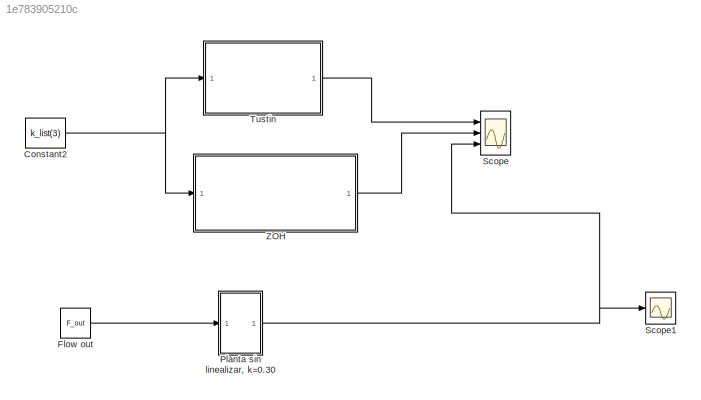
MODEL slx_1e783905210c
KIND model
CONFIG AbsTol = auto
CONFIG EnableMultiTasking = off
CONFIG FixedStep = auto
CONFIG MaxStep = auto
CONFIG MinStep = auto
CONFIG RelTol = 1e-3
CONFIG SampleTimeConstraint = Unconstrained
CONFIG SolverName = VariableStepAuto
CONFIG StartTime = 0.0
CONFIG StopTime = 60
BLOCK [Constant] Constant2
  Value = k_list(3)
BLOCK [Constant] Flow out
  Value = F_out
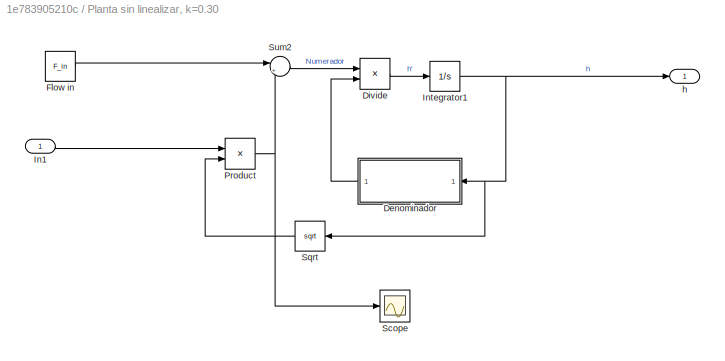
BLOCK [SubSystem] Planta sin linealizar, k=0.30
  Ports = [1, 1]
  RequestExecContextInheritance = off
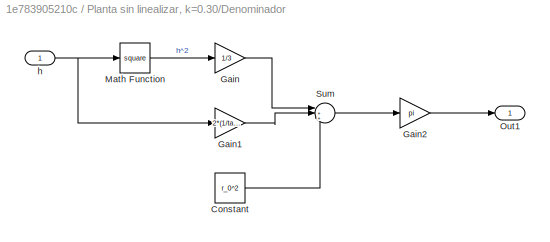
BLOCK [SubSystem] Planta sin linealizar, k=0.30/Denominador
  NameLocation = top
  Ports = [1, 1]
  RequestExecContextInheritance = off
BLOCK [Constant] Planta sin linealizar, k=0.30/Denominador/Constant
  Value = r_0^2
BLOCK [Gain] Planta sin linealizar, k=0.30/Denominador/Gain
  Gain = 1/3
BLOCK [Gain] Planta sin linealizar, k=0.30/Denominador/Gain1
  Gain = 2*(1/tand(theta))*r_0
BLOCK [Gain] Planta sin linealizar, k=0.30/Denominador/Gain2
  Gain = pi
BLOCK [Math] Planta sin linealizar, k=0.30/Denominador/Math Function
  Operator = square
  Ports = [1, 1]
BLOCK [Outport] Planta sin linealizar, k=0.30/Denominador/Out1
BLOCK [Sum] Planta sin linealizar, k=0.30/Denominador/Sum
  Inputs = |+++
  Ports = [3, 1]
BLOCK [Inport] Planta sin linealizar, k=0.30/Denominador/h
BLOCK [Product] Planta sin linealizar, k=0.30/Divide
  Inputs = */
  Ports = [2, 1]
BLOCK [Constant] Planta sin linealizar, k=0.30/Flow in
  Value = F_in
BLOCK [Inport] Planta sin linealizar, k=0.30/In1
BLOCK [Integrator] Planta sin linealizar, k=0.30/Integrator1
  InitialCondition = h_bar
  Ports = [1, 1]
BLOCK [Product] Planta sin linealizar, k=0.30/Product
  Ports = [2, 1]
BLOCK [Scope] Planta sin linealizar, k=0.30/Scope
  Floating = off
  NumInputPorts = 1
  Ports = [1]
  ScopeSpecificationString = Simulink.scopes.TimeScopeBlockCfg('CurrentConfiguration', extmgr.ConfigurationSet(extmgr.Configuration('Core','General UI',true),extmgr.Configuration('Core','Source UI',true),extmgr.Configuration('Sources','WiredSimulink',true,'DataLoggingVariableName','ScopeData2'),extmgr.Configuration('Visuals','Time Domain',true,'SerializedDisplays',{struct('MinYLimReal','-1.00000','MaxYLimReal','1.00000','YLab...<+1366ch>
BLOCK [Sqrt] Planta sin linealizar, k=0.30/Sqrt
  NameLocation = top
BLOCK [Sum] Planta sin linealizar, k=0.30/Sum2
  Inputs = |+-
  Ports = [2, 1]
BLOCK [Outport] Planta sin linealizar, k=0.30/h
BLOCK [Scope] Scope
  Floating = off
  NumInputPorts = 3
  Ports = [3]
  ScopeSpecificationString = Simulink.scopes.TimeScopeBlockCfg('CurrentConfiguration', extmgr.ConfigurationSet(extmgr.Configuration('Core','General UI',true),extmgr.Configuration('Core','Source UI',true),extmgr.Configuration('Sources','WiredSimulink',true),extmgr.Configuration('Visuals','Time Domain',true,'SerializedDisplays',{struct('MinYLimReal','-0.05062','MaxYLimReal','0.45554','YLabelReal','','MinYLimMag','0.00000','MaxY...<+1454ch>
BLOCK [Scope] Scope1
  Floating = off
  NumInputPorts = 1
  Ports = [1]
  ScopeSpecificationString = Simulink.scopes.TimeScopeBlockCfg('CurrentConfiguration', extmgr.ConfigurationSet(extmgr.Configuration('Core','General UI',true),extmgr.Configuration('Core','Source UI',true),extmgr.Configuration('Sources','WiredSimulink',true,'DataLoggingVariableName','ScopeData1'),extmgr.Configuration('Visuals','Time Domain',true,'SerializedDisplays',{struct('MinYLimReal','0.12894','MaxYLimReal','0.83951','YLabe...<+1386ch>
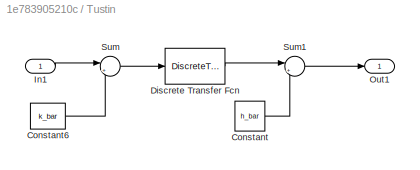
BLOCK [SubSystem] Tustin
  Ports = [1, 1]
  RequestExecContextInheritance = off
BLOCK [Constant] Tustin/Constant
  Value = h_bar
BLOCK [Constant] Tustin/Constant6
  Value = k_bar
BLOCK [DiscreteTransferFcn] Tustin/Discrete Transfer Fcn
  Denominator = den
  InputPortMap = u0
  Numerator = num
  Ports = [1, 1]
  SampleTime = 2
BLOCK [Inport] Tustin/In1
BLOCK [Outport] Tustin/Out1
BLOCK [Sum] Tustin/Sum
  Inputs = |+-
  Ports = [2, 1]
BLOCK [Sum] Tustin/Sum1
  Inputs = |++
  Ports = [2, 1]
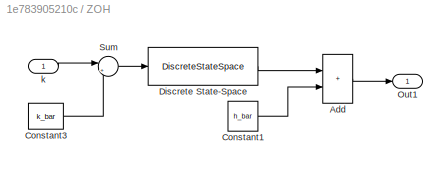
BLOCK [SubSystem] ZOH
  Ports = [1, 1]
  RequestExecContextInheritance = off
BLOCK [Sum] ZOH/Add
  IconShape = rectangular
  Ports = [2, 1]
BLOCK [Constant] ZOH/Constant1
  Value = h_bar
BLOCK [Constant] ZOH/Constant3
  Value = k_bar
BLOCK [DiscreteStateSpace] ZOH/Discrete State-Space
  A = A_d
  B = B_d
  D = 0
  SampleTime = Ts
BLOCK [Outport] ZOH/Out1
BLOCK [Sum] ZOH/Sum
  Inputs = |+-
  Ports = [2, 1]
BLOCK [Inport] ZOH/k
NET Constant2:1 -> Tustin:1, ZOH:1
LINE Flow out:1 -> Planta sin linealizar, k=0.30:1
LINE Planta sin linealizar, k=0.30/Denominador/Constant:1 -> Planta sin linealizar, k=0.30/Denominador/Sum:3
LINE Planta sin linealizar, k=0.30/Denominador/Gain1:1 -> Planta sin linealizar, k=0.30/Denominador/Sum:2
LINE Planta sin linealizar, k=0.30/Denominador/Gain2:1 -> Planta sin linealizar, k=0.30/Denominador/Out1:1
LINE Planta sin linealizar, k=0.30/Denominador/Gain:1 -> Planta sin linealizar, k=0.30/Denominador/Sum:1
LINE Planta sin linealizar, k=0.30/Denominador/Math Function:1 -> Planta sin linealizar, k=0.30/Denominador/Gain:1
LINE Planta sin linealizar, k=0.30/Denominador/Sum:1 -> Planta sin linealizar, k=0.30/Denominador/Gain2:1
NET Planta sin linealizar, k=0.30/Denominador/h:1 -> Planta sin linealizar, k=0.30/Denominador/Gain1:1, Planta sin linealizar, k=0.30/Denominador/Math Function:1
LINE Planta sin linealizar, k=0.30/Denominador:1 -> Planta sin linealizar, k=0.30/Divide:2
LINE Planta sin linealizar, k=0.30/Divide:1 -> Planta sin linealizar, k=0.30/Integrator1:1
LINE Planta sin linealizar, k=0.30/Flow in:1 -> Planta sin linealizar, k=0.30/Sum2:1
LINE Planta sin linealizar, k=0.30/In1:1 -> Planta sin linealizar, k=0.30/Product:1
NET Planta sin linealizar, k=0.30/Integrator1:1 -> Planta sin linealizar, k=0.30/Denominador:1, Planta sin linealizar, k=0.30/Sqrt:1, Planta sin linealizar, k=0.30/h:1
NET Planta sin linealizar, k=0.30/Product:1 -> Planta sin linealizar, k=0.30/Scope:1, Planta sin linealizar, k=0.30/Sum2:2
LINE Planta sin linealizar, k=0.30/Sqrt:1 -> Planta sin linealizar, k=0.30/Product:2
LINE Planta sin linealizar, k=0.30/Sum2:1 -> Planta sin linealizar, k=0.30/Divide:1
NET Planta sin linealizar, k=0.30:1 -> Scope1:1, Scope:3
LINE Tustin/Constant6:1 -> Tustin/Sum:2
LINE Tustin/Constant:1 -> Tustin/Sum1:2
LINE Tustin/Discrete Transfer Fcn:1 -> Tustin/Sum1:1
LINE Tustin/In1:1 -> Tustin/Sum:1
LINE Tustin/Sum1:1 -> Tustin/Out1:1
LINE Tustin/Sum:1 -> Tustin/Discrete Transfer Fcn:1
LINE Tustin:1 -> Scope:1
LINE ZOH/Add:1 -> ZOH/Out1:1
LINE ZOH/Constant1:1 -> ZOH/Add:2
LINE ZOH/Constant3:1 -> ZOH/Sum:2
LINE ZOH/Discrete State-Space:1 -> ZOH/Add:1
LINE ZOH/Sum:1 -> ZOH/Discrete State-Space:1
LINE ZOH/k:1 -> ZOH/Sum:1
LINE ZOH:1 -> Scope:2
note: NET lines group one-source signal fan-out (src -> all destinations, sorted); 1:1 wires keep LINE
